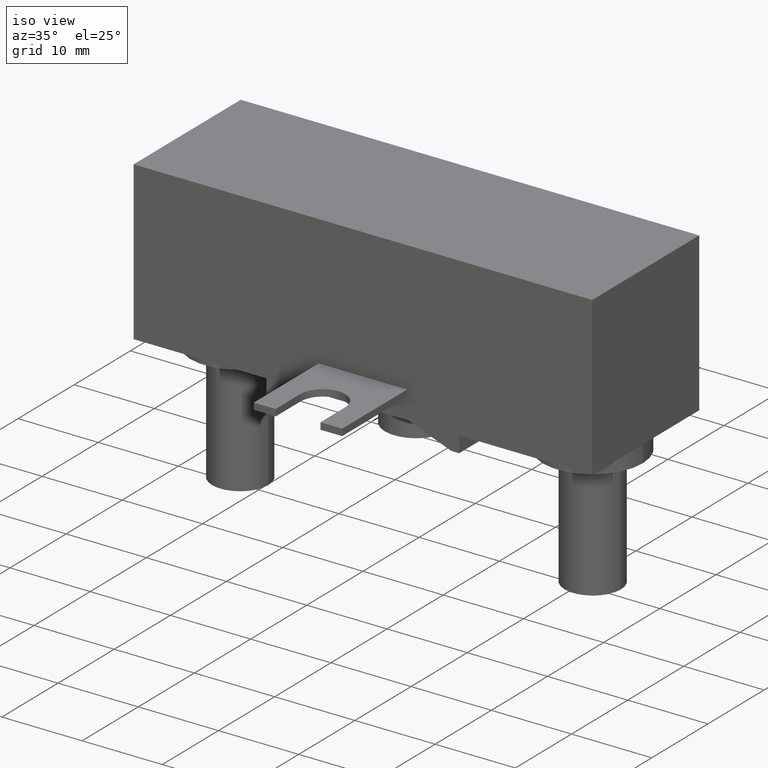
[diagram: clean part render]
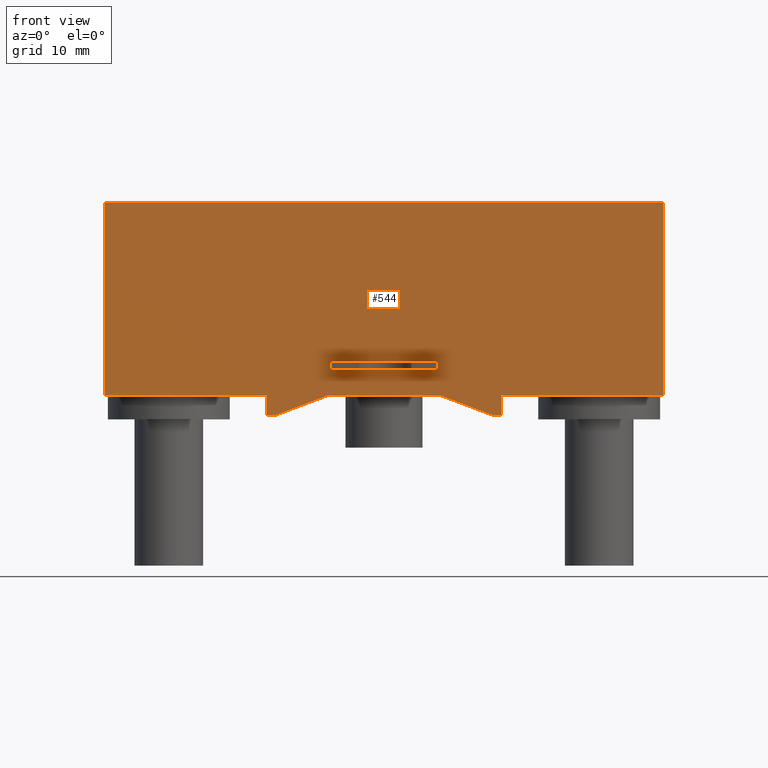
[diagram: tour spotlight — one face highlighted and labeled with its STEP entity id]
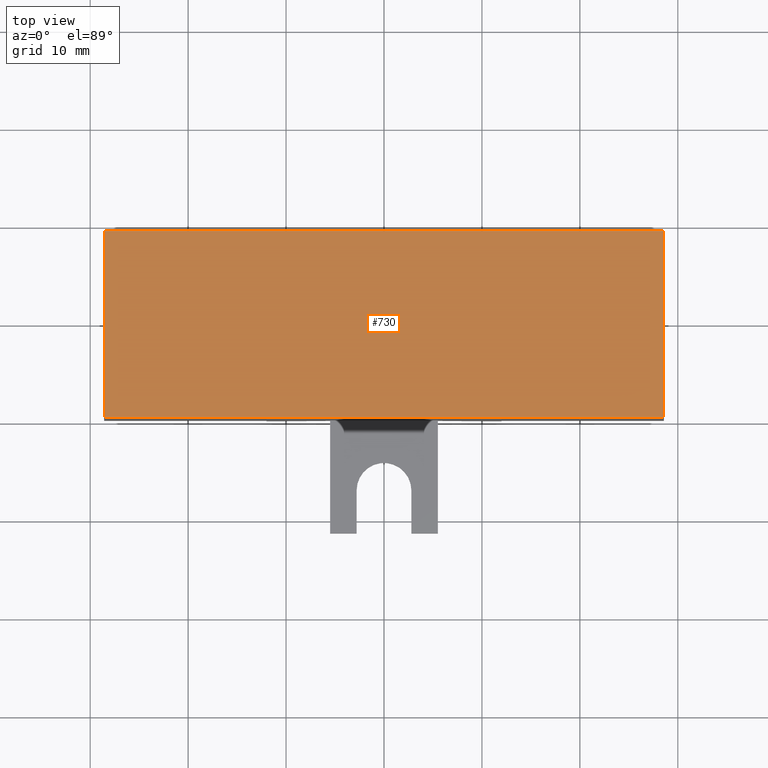
[diagram: tour spotlight — one face highlighted and labeled with its STEP entity id]
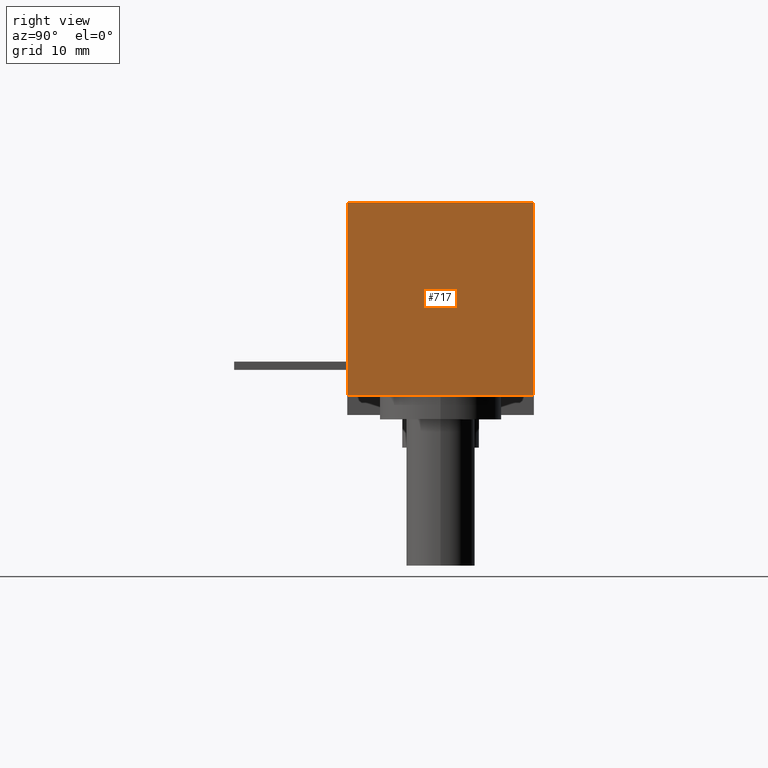
[diagram: tour spotlight — one face highlighted and labeled with its STEP entity id]
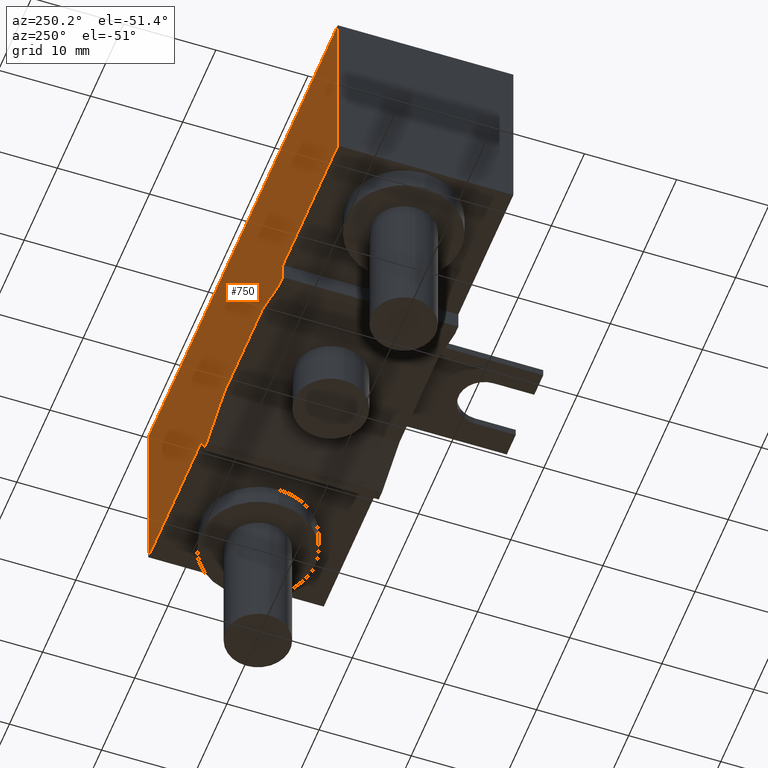
[diagram: tour spotlight — one face highlighted and labeled with its STEP entity id]
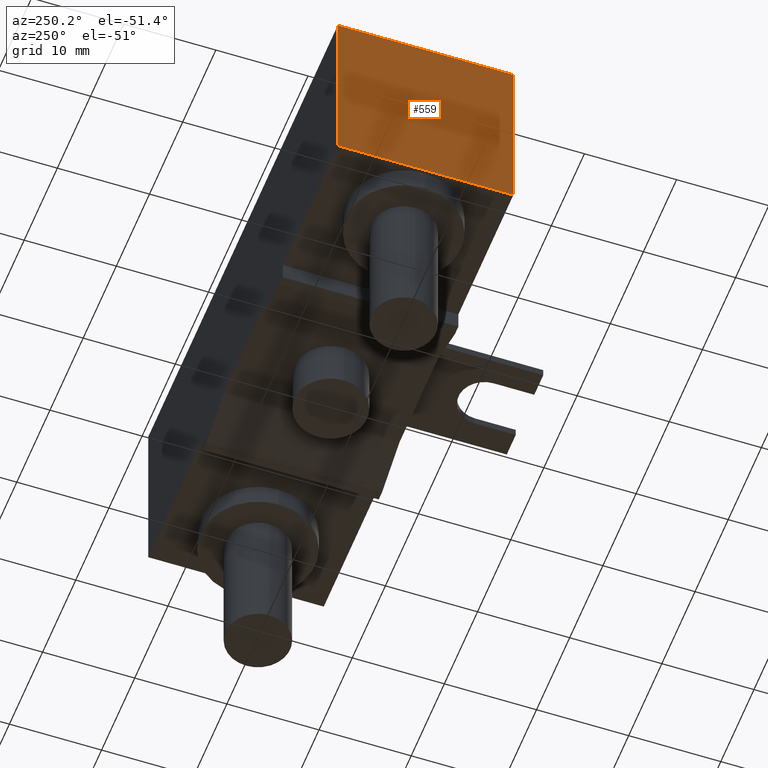
[diagram: tour spotlight — one face highlighted and labeled with its STEP entity id]
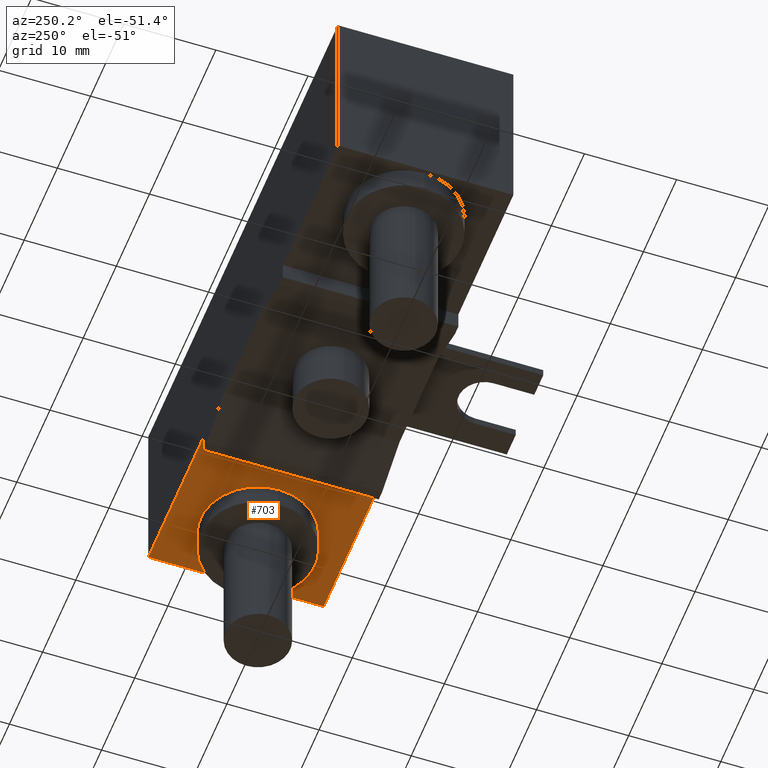
[diagram: tour spotlight — one face highlighted and labeled with its STEP entity id]
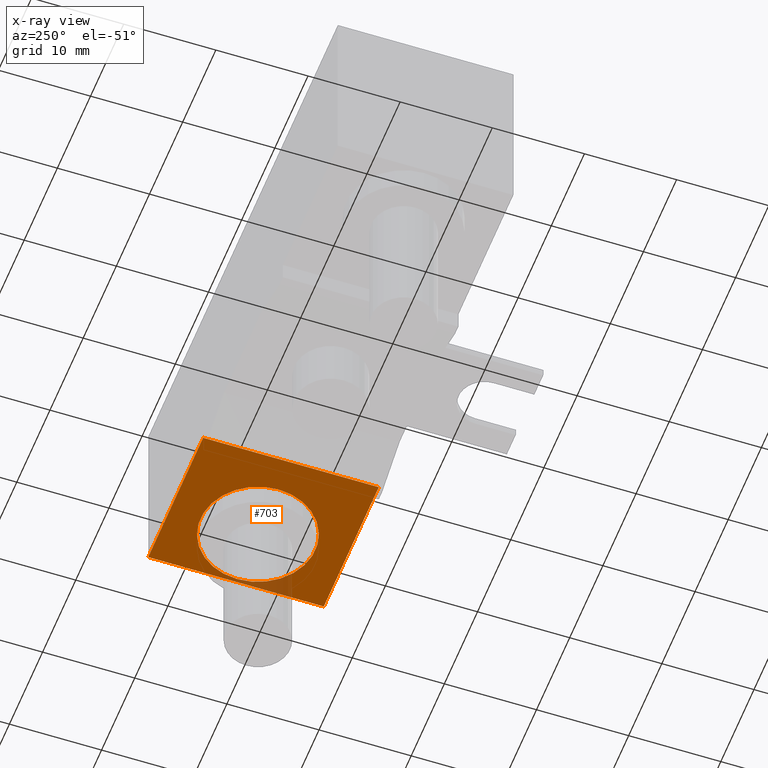
[diagram: x-ray of the same camera — body ghosted, this tour face saturated]
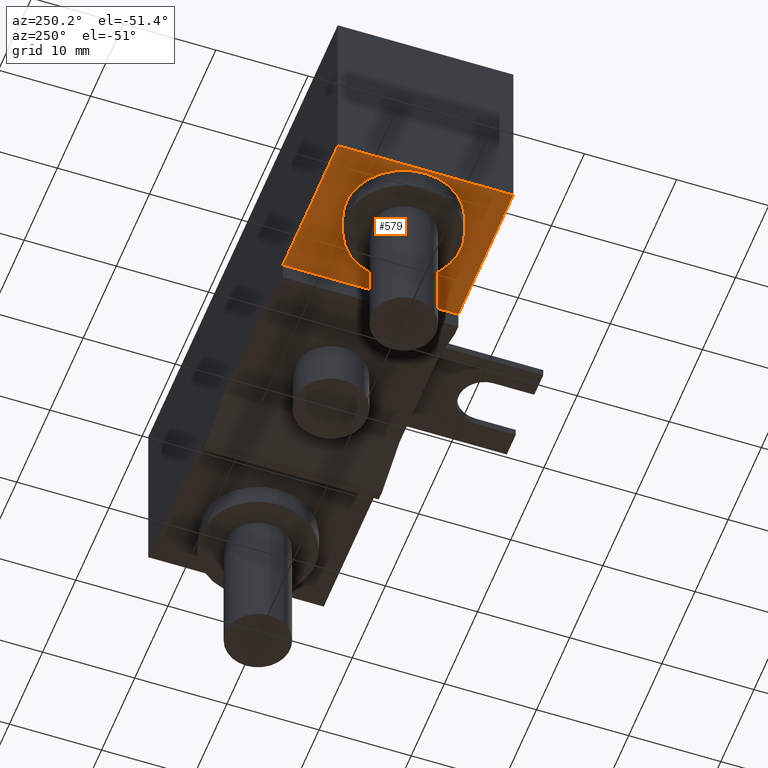
[diagram: tour spotlight — one face highlighted and labeled with its STEP entity id]
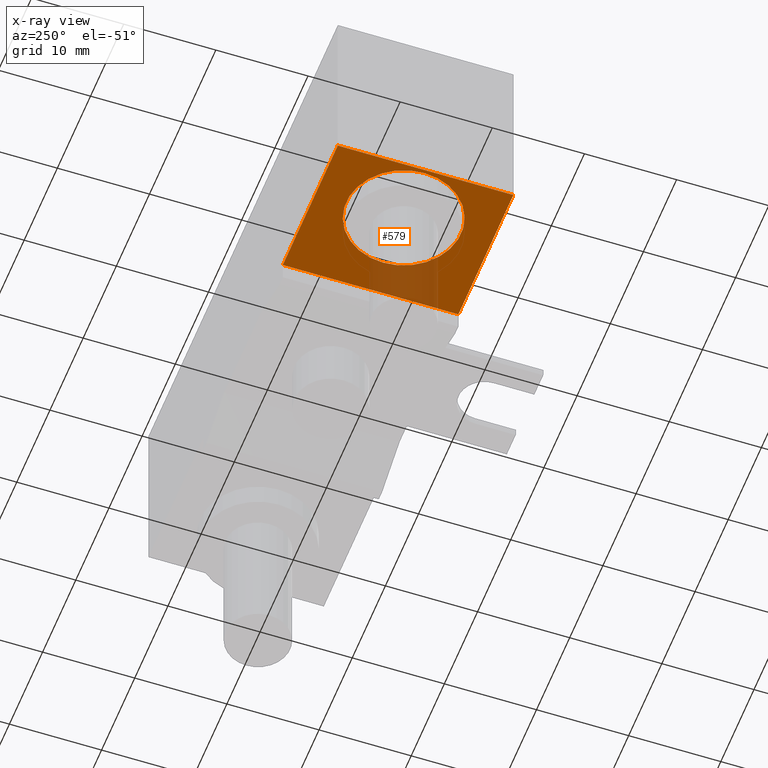
[diagram: x-ray of the same camera — body ghosted, this tour face saturated]
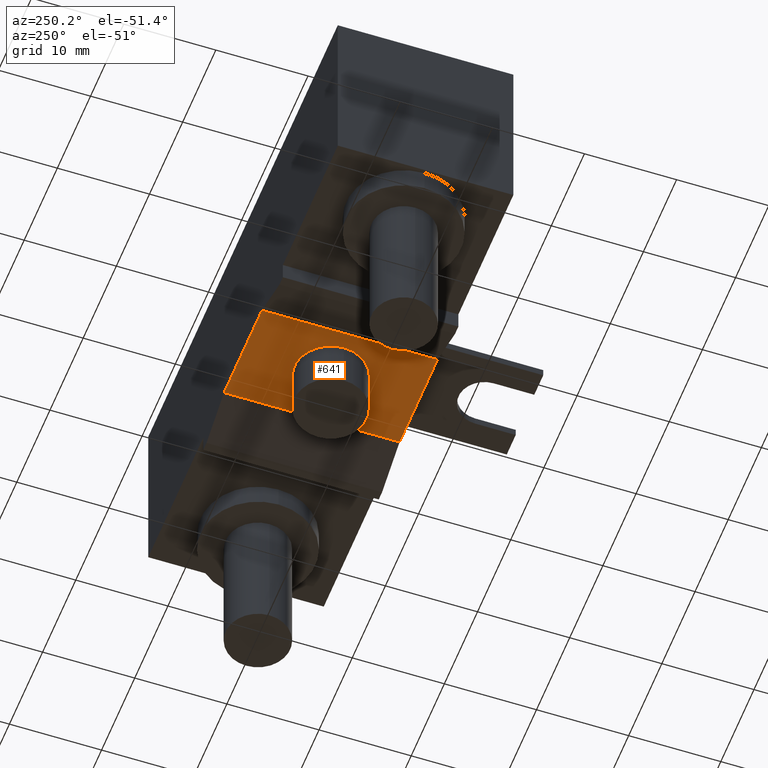
[diagram: tour spotlight — one face highlighted and labeled with its STEP entity id]
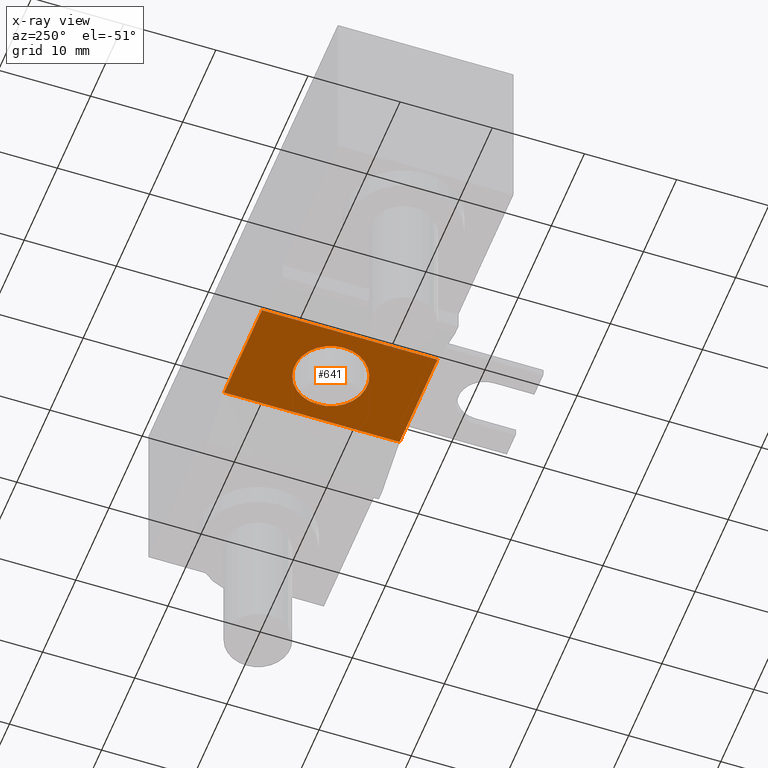
[diagram: x-ray of the same camera — body ghosted, this tour face saturated]
A machine part: a face-by-face anatomy tour. The part has 38 B-rep faces; the first image is the clean iso view, then the 8 largest visible faces are spotlighted one at a time (largest first), each with its STEP entity span.

Face 1 — front view, entity #544. In plain terms, the highlighted planar face has unit normal (0, 1, 0).
Definition (entity closure, byte-faithful):
#1=DIRECTION('',(0.E0,0.E0,1.E0));
#2=VECTOR('',#1,1.97E1);
#3=CARTESIAN_POINT('',(-2.8575E1,0.E0,-9.85E0));
#4=LINE('',#3,#2);
#5=DIRECTION('',(1.E0,0.E0,0.E0));
#6=VECTOR('',#5,5.715E1);
#7=CARTESIAN_POINT('',(-2.8575E1,0.E0,9.85E0));
#8=LINE('',#7,#6);
#9=DIRECTION('',(0.E0,0.E0,-1.E0));
#10=VECTOR('',#9,1.97E1);
#11=CARTESIAN_POINT('',(2.8575E1,0.E0,9.85E0));
#12=LINE('',#11,#10);
#13=DIRECTION('',(-1.E0,0.E0,0.E0));
#14=VECTOR('',#13,1.6575E1);
#15=CARTESIAN_POINT('',(2.8575E1,0.E0,-9.85E0));
#16=LINE('',#15,#14);
#17=DIRECTION('',(0.E0,0.E0,-1.E0));
#18=VECTOR('',#17,2.E0);
#19=CARTESIAN_POINT('',(1.2E1,0.E0,-9.85E0));
#20=LINE('',#19,#18);
#21=DIRECTION('',(-1.E0,0.E0,0.E0));
#22=VECTOR('',#21,1.E0);
#23=CARTESIAN_POINT('',(1.2E1,0.E0,-1.185E1));
#24=LINE('',#23,#22);
#25=DIRECTION('',(-9.352704256096E-1,0.E0,3.539339358977E-1));
#26=VECTOR('',#25,5.650772071142E0);
#27=CARTESIAN_POINT('',(1.1E1,0.E0,-1.185E1));
#28=LINE('',#27,#26);
#29=DIRECTION('',(-1.E0,0.E0,0.E0));
#30=VECTOR('',#29,1.143E1);
#31=CARTESIAN_POINT('',(5.715E0,0.E0,-9.85E0));
#32=LINE('',#31,#30);
#33=DIRECTION('',(-9.352704256096E-1,0.E0,-3.539339358977E-1));
#34=VECTOR('',#33,5.650772071142E0);
#35=CARTESIAN_POINT('',(-5.715E0,0.E0,-9.85E0));
#36=LINE('',#35,#34);
#37=DIRECTION('',(-1.E0,0.E0,0.E0));
#38=VECTOR('',#37,1.E0);
#39=CARTESIAN_POINT('',(-1.1E1,0.E0,-1.185E1));
#40=LINE('',#39,#38);
#41=DIRECTION('',(0.E0,0.E0,1.E0));
#42=VECTOR('',#41,2.E0);
#43=CARTESIAN_POINT('',(-1.2E1,0.E0,-1.185E1));
#44=LINE('',#43,#42);
#45=DIRECTION('',(-1.E0,0.E0,0.E0));
#46=VECTOR('',#45,1.6575E1);
#47=CARTESIAN_POINT('',(-1.2E1,0.E0,-9.85E0));
#48=LINE('',#47,#46);
#49=DIRECTION('',(1.E0,0.E0,0.E0));
#50=VECTOR('',#49,1.1E1);
#51=CARTESIAN_POINT('',(-5.5E0,0.E0,-6.41E0));
#52=LINE('',#51,#50);
#53=DIRECTION('',(0.E0,0.E0,-1.E0));
#54=VECTOR('',#53,8.4E-1);
#55=CARTESIAN_POINT('',(-5.5E0,0.E0,-6.41E0));
#56=LINE('',#55,#54);
#57=DIRECTION('',(1.E0,0.E0,0.E0));
#58=VECTOR('',#57,1.1E1);
#59=CARTESIAN_POINT('',(-5.5E0,0.E0,-7.25E0));
#60=LINE('',#59,#58);
#61=DIRECTION('',(0.E0,0.E0,-1.E0));
#62=VECTOR('',#61,8.4E-1);
#63=CARTESIAN_POINT('',(5.5E0,0.E0,-6.41E0));
#64=LINE('',#63,#62);
#383=CARTESIAN_POINT('',(-2.8575E1,0.E0,-9.85E0));
#384=CARTESIAN_POINT('',(-2.8575E1,0.E0,9.85E0));
#385=VERTEX_POINT('',#383);
#386=VERTEX_POINT('',#384);
#387=CARTESIAN_POINT('',(2.8575E1,0.E0,9.85E0));
#388=VERTEX_POINT('',#387);
#389=CARTESIAN_POINT('',(2.8575E1,0.E0,-9.85E0));
#390=VERTEX_POINT('',#389);
#391=CARTESIAN_POINT('',(-1.2E1,0.E0,-9.85E0));
#392=VERTEX_POINT('',#391);
#403=CARTESIAN_POINT('',(1.2E1,0.E0,-9.85E0));
#404=VERTEX_POINT('',#403);
#405=CARTESIAN_POINT('',(1.2E1,0.E0,-1.185E1));
#406=VERTEX_POINT('',#405);
#407=CARTESIAN_POINT('',(1.1E1,0.E0,-1.185E1));
#408=VERTEX_POINT('',#407);
#409=CARTESIAN_POINT('',(5.715E0,0.E0,-9.85E0));
#410=VERTEX_POINT('',#409);
#411=CARTESIAN_POINT('',(-5.715E0,0.E0,-9.85E0));
#412=VERTEX_POINT('',#411);
#413=CARTESIAN_POINT('',(-1.1E1,0.E0,-1.185E1));
#414=VERTEX_POINT('',#413);
#415=CARTESIAN_POINT('',(-1.2E1,0.E0,-1.185E1));
#416=VERTEX_POINT('',#415);
#471=CARTESIAN_POINT('',(-5.5E0,0.E0,-6.41E0));
#472=CARTESIAN_POINT('',(5.5E0,0.E0,-6.41E0));
#473=VERTEX_POINT('',#471);
#474=VERTEX_POINT('',#472);
#475=CARTESIAN_POINT('',(-5.5E0,0.E0,-7.25E0));
#476=CARTESIAN_POINT('',(5.5E0,0.E0,-7.25E0));
#477=VERTEX_POINT('',#475);
#478=VERTEX_POINT('',#476);
#503=CARTESIAN_POINT('',(0.E0,0.E0,0.E0));
#504=DIRECTION('',(0.E0,1.E0,0.E0));
#505=DIRECTION('',(1.E0,0.E0,0.E0));
#506=AXIS2_PLACEMENT_3D('',#503,#504,#505);
#507=PLANE('',#506);
#509=ORIENTED_EDGE('',*,*,#508,.T.);
#511=ORIENTED_EDGE('',*,*,#510,.T.);
#513=ORIENTED_EDGE('',*,*,#512,.T.);
#515=ORIENTED_EDGE('',*,*,#514,.T.);
#517=ORIENTED_EDGE('',*,*,#516,.T.);
#519=ORIENTED_EDGE('',*,*,#518,.T.);
#521=ORIENTED_EDGE('',*,*,#520,.T.);
#523=ORIENTED_EDGE('',*,*,#522,.T.);
#525=ORIENTED_EDGE('',*,*,#524,.T.);
#527=ORIENTED_EDGE('',*,*,#526,.T.);
#529=ORIENTED_EDGE('',*,*,#528,.T.);
#531=ORIENTED_EDGE('',*,*,#530,.T.);
#532=EDGE_LOOP('',(#509,#511,#513,#515,#517,#519,#521,#523,#525,#527,#529,
#531));
#533=FACE_OUTER_BOUND('',#532,.F.);
#535=ORIENTED_EDGE('',*,*,#534,.F.);
#537=ORIENTED_EDGE('',*,*,#536,.T.);
#539=ORIENTED_EDGE('',*,*,#538,.T.);
#541=ORIENTED_EDGE('',*,*,#540,.F.);
#542=EDGE_LOOP('',(#535,#537,#539,#541));
#543=FACE_BOUND('',#542,.F.);
#508=EDGE_CURVE('',#385,#386,#4,.T.);
#510=EDGE_CURVE('',#386,#388,#8,.T.);
#512=EDGE_CURVE('',#388,#390,#12,.T.);
#514=EDGE_CURVE('',#390,#404,#16,.T.);
#516=EDGE_CURVE('',#404,#406,#20,.T.);
#518=EDGE_CURVE('',#406,#408,#24,.T.);
#520=EDGE_CURVE('',#408,#410,#28,.T.);
#522=EDGE_CURVE('',#410,#412,#32,.T.);
#524=EDGE_CURVE('',#412,#414,#36,.T.);
#526=EDGE_CURVE('',#414,#416,#40,.T.);
#528=EDGE_CURVE('',#416,#392,#44,.T.);
#530=EDGE_CURVE('',#392,#385,#48,.T.);
#534=EDGE_CURVE('',#473,#474,#52,.T.);
#536=EDGE_CURVE('',#473,#477,#56,.T.);
#538=EDGE_CURVE('',#477,#478,#60,.T.);
#540=EDGE_CURVE('',#474,#478,#64,.T.);
#544=ADVANCED_FACE('',(#533,#543),#507,.F.);

Face 2 — top view, entity #730. In plain terms, the highlighted planar face has unit normal (0, 0, 1).
Definition (entity closure, byte-faithful):
#5=DIRECTION('',(1.E0,0.E0,0.E0));
#6=VECTOR('',#5,5.715E1);
#7=CARTESIAN_POINT('',(-2.8575E1,0.E0,9.85E0));
#8=LINE('',#7,#6);
#135=DIRECTION('',(0.E0,1.E0,0.E0));
#136=VECTOR('',#135,1.905E1);
#137=CARTESIAN_POINT('',(2.8575E1,0.E0,9.85E0));
#138=LINE('',#137,#136);
#139=DIRECTION('',(0.E0,1.E0,0.E0));
#140=VECTOR('',#139,1.905E1);
#141=CARTESIAN_POINT('',(-2.8575E1,0.E0,9.85E0));
#142=LINE('',#141,#140);
#187=DIRECTION('',(1.E0,0.E0,0.E0));
#188=VECTOR('',#187,5.715E1);
#189=CARTESIAN_POINT('',(-2.8575E1,1.905E1,9.85E0));
#190=LINE('',#189,#188);
#384=CARTESIAN_POINT('',(-2.8575E1,0.E0,9.85E0));
#386=VERTEX_POINT('',#384);
#387=CARTESIAN_POINT('',(2.8575E1,0.E0,9.85E0));
#388=VERTEX_POINT('',#387);
#394=CARTESIAN_POINT('',(-2.8575E1,1.905E1,9.85E0));
#396=VERTEX_POINT('',#394);
#397=CARTESIAN_POINT('',(2.8575E1,1.905E1,9.85E0));
#398=VERTEX_POINT('',#397);
#718=CARTESIAN_POINT('',(-2.8575E1,0.E0,9.85E0));
#719=DIRECTION('',(0.E0,0.E0,1.E0));
#720=DIRECTION('',(1.E0,0.E0,0.E0));
#721=AXIS2_PLACEMENT_3D('',#718,#719,#720);
#722=PLANE('',#721);
#723=ORIENTED_EDGE('',*,*,#510,.F.);
#724=ORIENTED_EDGE('',*,*,#555,.T.);
#726=ORIENTED_EDGE('',*,*,#725,.T.);
#727=ORIENTED_EDGE('',*,*,#710,.F.);
#728=EDGE_LOOP('',(#723,#724,#726,#727));
#729=FACE_OUTER_BOUND('',#728,.F.);
#510=EDGE_CURVE('',#386,#388,#8,.T.);
#555=EDGE_CURVE('',#386,#396,#142,.T.);
#710=EDGE_CURVE('',#388,#398,#138,.T.);
#725=EDGE_CURVE('',#396,#398,#190,.T.);
#730=ADVANCED_FACE('',(#729),#722,.T.);

Face 3 — right view, entity #717. In plain terms, the highlighted planar face has unit normal (1, 0, 0).
Definition (entity closure, byte-faithful):
#9=DIRECTION('',(0.E0,0.E0,-1.E0));
#10=VECTOR('',#9,1.97E1);
#11=CARTESIAN_POINT('',(2.8575E1,0.E0,9.85E0));
#12=LINE('',#11,#10);
#121=DIRECTION('',(0.E0,1.E0,0.E0));
#122=VECTOR('',#121,1.905E1);
#123=CARTESIAN_POINT('',(2.8575E1,0.E0,-9.85E0));
#124=LINE('',#123,#122);
#135=DIRECTION('',(0.E0,1.E0,0.E0));
#136=VECTOR('',#135,1.905E1);
#137=CARTESIAN_POINT('',(2.8575E1,0.E0,9.85E0));
#138=LINE('',#137,#136);
#183=DIRECTION('',(0.E0,0.E0,-1.E0));
#184=VECTOR('',#183,1.97E1);
#185=CARTESIAN_POINT('',(2.8575E1,1.905E1,9.85E0));
#186=LINE('',#185,#184);
#387=CARTESIAN_POINT('',(2.8575E1,0.E0,9.85E0));
#388=VERTEX_POINT('',#387);
#389=CARTESIAN_POINT('',(2.8575E1,0.E0,-9.85E0));
#390=VERTEX_POINT('',#389);
#397=CARTESIAN_POINT('',(2.8575E1,1.905E1,9.85E0));
#398=VERTEX_POINT('',#397);
#399=CARTESIAN_POINT('',(2.8575E1,1.905E1,-9.85E0));
#400=VERTEX_POINT('',#399);
#704=CARTESIAN_POINT('',(2.8575E1,0.E0,9.85E0));
#705=DIRECTION('',(1.E0,0.E0,0.E0));
#706=DIRECTION('',(0.E0,0.E0,-1.E0));
#707=AXIS2_PLACEMENT_3D('',#704,#705,#706);
#708=PLANE('',#707);
#709=ORIENTED_EDGE('',*,*,#512,.F.);
#711=ORIENTED_EDGE('',*,*,#710,.T.);
#713=ORIENTED_EDGE('',*,*,#712,.T.);
#714=ORIENTED_EDGE('',*,*,#690,.F.);
#715=EDGE_LOOP('',(#709,#711,#713,#714));
#716=FACE_OUTER_BOUND('',#715,.F.);
#512=EDGE_CURVE('',#388,#390,#12,.T.);
#690=EDGE_CURVE('',#390,#400,#124,.T.);
#710=EDGE_CURVE('',#388,#398,#138,.T.);
#712=EDGE_CURVE('',#398,#400,#186,.T.);
#717=ADVANCED_FACE('',(#716),#708,.T.);

Face 4 — auxiliary view, entity #750. In plain terms, the highlighted planar face has unit normal (0, 1, 0).
Definition (entity closure, byte-faithful):
#143=DIRECTION('',(0.E0,0.E0,1.E0));
#144=VECTOR('',#143,1.97E1);
#145=CARTESIAN_POINT('',(-2.8575E1,1.905E1,-9.85E0));
#146=LINE('',#145,#144);
#147=DIRECTION('',(-1.E0,0.E0,0.E0));
#148=VECTOR('',#147,1.6575E1);
#149=CARTESIAN_POINT('',(-1.2E1,1.905E1,-9.85E0));
#150=LINE('',#149,#148);
#151=DIRECTION('',(0.E0,0.E0,1.E0));
#152=VECTOR('',#151,2.E0);
#153=CARTESIAN_POINT('',(-1.2E1,1.905E1,-1.185E1));
#154=LINE('',#153,#152);
#155=DIRECTION('',(-1.E0,0.E0,0.E0));
#156=VECTOR('',#155,1.E0);
#157=CARTESIAN_POINT('',(-1.1E1,1.905E1,-1.185E1));
#158=LINE('',#157,#156);
#159=DIRECTION('',(-9.352704256096E-1,0.E0,-3.539339358977E-1));
#160=VECTOR('',#159,5.650772071142E0);
#161=CARTESIAN_POINT('',(-5.715E0,1.905E1,-9.85E0));
#162=LINE('',#161,#160);
#163=DIRECTION('',(-1.E0,0.E0,0.E0));
#164=VECTOR('',#163,1.143E1);
#165=CARTESIAN_POINT('',(5.715E0,1.905E1,-9.85E0));
#166=LINE('',#165,#164);
#167=DIRECTION('',(-9.352704256096E-1,0.E0,3.539339358977E-1));
#168=VECTOR('',#167,5.650772071142E0);
#169=CARTESIAN_POINT('',(1.1E1,1.905E1,-1.185E1));
#170=LINE('',#169,#168);
#171=DIRECTION('',(-1.E0,0.E0,0.E0));
#172=VECTOR('',#171,1.E0);
#173=CARTESIAN_POINT('',(1.2E1,1.905E1,-1.185E1));
#174=LINE('',#173,#172);
#175=DIRECTION('',(0.E0,0.E0,-1.E0));
#176=VECTOR('',#175,2.E0);
#177=CARTESIAN_POINT('',(1.2E1,1.905E1,-9.85E0));
#178=LINE('',#177,#176);
#179=DIRECTION('',(-1.E0,0.E0,0.E0));
#180=VECTOR('',#179,1.6575E1);
#181=CARTESIAN_POINT('',(2.8575E1,1.905E1,-9.85E0));
#182=LINE('',#181,#180);
#183=DIRECTION('',(0.E0,0.E0,-1.E0));
#184=VECTOR('',#183,1.97E1);
#185=CARTESIAN_POINT('',(2.8575E1,1.905E1,9.85E0));
#186=LINE('',#185,#184);
#187=DIRECTION('',(1.E0,0.E0,0.E0));
#188=VECTOR('',#187,5.715E1);
#189=CARTESIAN_POINT('',(-2.8575E1,1.905E1,9.85E0));
#190=LINE('',#189,#188);
#393=CARTESIAN_POINT('',(-2.8575E1,1.905E1,-9.85E0));
#394=CARTESIAN_POINT('',(-2.8575E1,1.905E1,9.85E0));
#395=VERTEX_POINT('',#393);
#396=VERTEX_POINT('',#394);
#397=CARTESIAN_POINT('',(2.8575E1,1.905E1,9.85E0));
#398=VERTEX_POINT('',#397);
#399=CARTESIAN_POINT('',(2.8575E1,1.905E1,-9.85E0));
#400=VERTEX_POINT('',#399);
#401=CARTESIAN_POINT('',(-1.2E1,1.905E1,-9.85E0));
#402=VERTEX_POINT('',#401);
#417=CARTESIAN_POINT('',(1.2E1,1.905E1,-9.85E0));
#418=VERTEX_POINT('',#417);
#419=CARTESIAN_POINT('',(1.2E1,1.905E1,-1.185E1));
#420=VERTEX_POINT('',#419);
#421=CARTESIAN_POINT('',(1.1E1,1.905E1,-1.185E1));
#422=VERTEX_POINT('',#421);
#423=CARTESIAN_POINT('',(5.715E0,1.905E1,-9.85E0));
#424=VERTEX_POINT('',#423);
#425=CARTESIAN_POINT('',(-5.715E0,1.905E1,-9.85E0));
#426=VERTEX_POINT('',#425);
#427=CARTESIAN_POINT('',(-1.1E1,1.905E1,-1.185E1));
#428=VERTEX_POINT('',#427);
#429=CARTESIAN_POINT('',(-1.2E1,1.905E1,-1.185E1));
#430=VERTEX_POINT('',#429);
#731=CARTESIAN_POINT('',(0.E0,1.905E1,0.E0));
#732=DIRECTION('',(0.E0,1.E0,0.E0));
#733=DIRECTION('',(1.E0,0.E0,0.E0));
#734=AXIS2_PLACEMENT_3D('',#731,#732,#733);
#735=PLANE('',#734);
#736=ORIENTED_EDGE('',*,*,#553,.F.);
#737=ORIENTED_EDGE('',*,*,#568,.F.);
#738=ORIENTED_EDGE('',*,*,#588,.F.);
#739=ORIENTED_EDGE('',*,*,#602,.F.);
#740=ORIENTED_EDGE('',*,*,#616,.F.);
#741=ORIENTED_EDGE('',*,*,#630,.F.);
#742=ORIENTED_EDGE('',*,*,#650,.F.);
#743=ORIENTED_EDGE('',*,*,#664,.F.);
#744=ORIENTED_EDGE('',*,*,#678,.F.);
#745=ORIENTED_EDGE('',*,*,#692,.F.);
#746=ORIENTED_EDGE('',*,*,#712,.F.);
#747=ORIENTED_EDGE('',*,*,#725,.F.);
#748=EDGE_LOOP('',(#736,#737,#738,#739,#740,#741,#742,#743,#744,#745,#746,
#747));
#749=FACE_OUTER_BOUND('',#748,.F.);
#553=EDGE_CURVE('',#395,#396,#146,.T.);
#568=EDGE_CURVE('',#402,#395,#150,.T.);
#588=EDGE_CURVE('',#430,#402,#154,.T.);
#602=EDGE_CURVE('',#428,#430,#158,.T.);
#616=EDGE_CURVE('',#426,#428,#162,.T.);
#630=EDGE_CURVE('',#424,#426,#166,.T.);
#650=EDGE_CURVE('',#422,#424,#170,.T.);
#664=EDGE_CURVE('',#420,#422,#174,.T.);
#678=EDGE_CURVE('',#418,#420,#178,.T.);
#692=EDGE_CURVE('',#400,#418,#182,.T.);
#712=EDGE_CURVE('',#398,#400,#186,.T.);
#725=EDGE_CURVE('',#396,#398,#190,.T.);
#750=ADVANCED_FACE('',(#749),#735,.T.);

Face 5 — auxiliary view, entity #559. In plain terms, the highlighted planar face has unit normal (-1, 0, 0).
Definition (entity closure, byte-faithful):
#1=DIRECTION('',(0.E0,0.E0,1.E0));
#2=VECTOR('',#1,1.97E1);
#3=CARTESIAN_POINT('',(-2.8575E1,0.E0,-9.85E0));
#4=LINE('',#3,#2);
#65=DIRECTION('',(0.E0,1.E0,0.E0));
#66=VECTOR('',#65,1.905E1);
#67=CARTESIAN_POINT('',(-2.8575E1,0.E0,-9.85E0));
#68=LINE('',#67,#66);
#139=DIRECTION('',(0.E0,1.E0,0.E0));
#140=VECTOR('',#139,1.905E1);
#141=CARTESIAN_POINT('',(-2.8575E1,0.E0,9.85E0));
#142=LINE('',#141,#140);
#143=DIRECTION('',(0.E0,0.E0,1.E0));
#144=VECTOR('',#143,1.97E1);
#145=CARTESIAN_POINT('',(-2.8575E1,1.905E1,-9.85E0));
#146=LINE('',#145,#144);
#383=CARTESIAN_POINT('',(-2.8575E1,0.E0,-9.85E0));
#384=CARTESIAN_POINT('',(-2.8575E1,0.E0,9.85E0));
#385=VERTEX_POINT('',#383);
#386=VERTEX_POINT('',#384);
#393=CARTESIAN_POINT('',(-2.8575E1,1.905E1,-9.85E0));
#394=CARTESIAN_POINT('',(-2.8575E1,1.905E1,9.85E0));
#395=VERTEX_POINT('',#393);
#396=VERTEX_POINT('',#394);
#545=CARTESIAN_POINT('',(-2.8575E1,0.E0,-9.85E0));
#546=DIRECTION('',(-1.E0,0.E0,0.E0));
#547=DIRECTION('',(0.E0,0.E0,1.E0));
#548=AXIS2_PLACEMENT_3D('',#545,#546,#547);
#549=PLANE('',#548);
#550=ORIENTED_EDGE('',*,*,#508,.F.);
#552=ORIENTED_EDGE('',*,*,#551,.T.);
#554=ORIENTED_EDGE('',*,*,#553,.T.);
#556=ORIENTED_EDGE('',*,*,#555,.F.);
#557=EDGE_LOOP('',(#550,#552,#554,#556));
#558=FACE_OUTER_BOUND('',#557,.F.);
#508=EDGE_CURVE('',#385,#386,#4,.T.);
#551=EDGE_CURVE('',#385,#395,#68,.T.);
#553=EDGE_CURVE('',#395,#396,#146,.T.);
#555=EDGE_CURVE('',#386,#396,#142,.T.);
#559=ADVANCED_FACE('',(#558),#549,.T.);

Face 6 — auxiliary view, entity #703. An x-ray twin of the same camera follows (body ghosted, this face saturated) — the face is partly hidden behind the body. In plain terms, the highlighted planar face has unit normal (0, 0, -1).
Definition (entity closure, byte-faithful):
#13=DIRECTION('',(-1.E0,0.E0,0.E0));
#14=VECTOR('',#13,1.6575E1);
#15=CARTESIAN_POINT('',(2.8575E1,0.E0,-9.85E0));
#16=LINE('',#15,#14);
#117=DIRECTION('',(0.E0,1.E0,0.E0));
#118=VECTOR('',#117,1.905E1);
#119=CARTESIAN_POINT('',(1.2E1,0.E0,-9.85E0));
#120=LINE('',#119,#118);
#121=DIRECTION('',(0.E0,1.E0,0.E0));
#122=VECTOR('',#121,1.905E1);
#123=CARTESIAN_POINT('',(2.8575E1,0.E0,-9.85E0));
#124=LINE('',#123,#122);
#125=CARTESIAN_POINT('',(2.197E1,9.525E0,-9.85E0));
#126=DIRECTION('',(0.E0,0.E0,-1.E0));
#127=DIRECTION('',(1.E0,0.E0,0.E0));
#128=AXIS2_PLACEMENT_3D('',#125,#126,#127);
#130=CARTESIAN_POINT('',(2.197E1,9.525E0,-9.85E0));
#131=DIRECTION('',(0.E0,0.E0,-1.E0));
#132=DIRECTION('',(-1.E0,0.E0,0.E0));
#133=AXIS2_PLACEMENT_3D('',#130,#131,#132);
#179=DIRECTION('',(-1.E0,0.E0,0.E0));
#180=VECTOR('',#179,1.6575E1);
#181=CARTESIAN_POINT('',(2.8575E1,1.905E1,-9.85E0));
#182=LINE('',#181,#180);
#389=CARTESIAN_POINT('',(2.8575E1,0.E0,-9.85E0));
#390=VERTEX_POINT('',#389);
#399=CARTESIAN_POINT('',(2.8575E1,1.905E1,-9.85E0));
#400=VERTEX_POINT('',#399);
#403=CARTESIAN_POINT('',(1.2E1,0.E0,-9.85E0));
#404=VERTEX_POINT('',#403);
#417=CARTESIAN_POINT('',(1.2E1,1.905E1,-9.85E0));
#418=VERTEX_POINT('',#417);
#443=CARTESIAN_POINT('',(2.8195E1,9.525E0,-9.85E0));
#444=CARTESIAN_POINT('',(1.5745E1,9.525E0,-9.85E0));
#445=VERTEX_POINT('',#443);
#446=VERTEX_POINT('',#444);
#684=CARTESIAN_POINT('',(2.8575E1,0.E0,-9.85E0));
#685=DIRECTION('',(0.E0,0.E0,-1.E0));
#686=DIRECTION('',(-1.E0,0.E0,0.E0));
#687=AXIS2_PLACEMENT_3D('',#684,#685,#686);
#688=PLANE('',#687);
#689=ORIENTED_EDGE('',*,*,#514,.F.);
#691=ORIENTED_EDGE('',*,*,#690,.T.);
#693=ORIENTED_EDGE('',*,*,#692,.T.);
#694=ORIENTED_EDGE('',*,*,#676,.F.);
#695=EDGE_LOOP('',(#689,#691,#693,#694));
#696=FACE_OUTER_BOUND('',#695,.F.);
#698=ORIENTED_EDGE('',*,*,#697,.T.);
#700=ORIENTED_EDGE('',*,*,#699,.T.);
#701=EDGE_LOOP('',(#698,#700));
#702=FACE_BOUND('',#701,.F.);
#129=CIRCLE('',#128,6.225E0);
#134=CIRCLE('',#133,6.225E0);
#514=EDGE_CURVE('',#390,#404,#16,.T.);
#676=EDGE_CURVE('',#404,#418,#120,.T.);
#690=EDGE_CURVE('',#390,#400,#124,.T.);
#692=EDGE_CURVE('',#400,#418,#182,.T.);
#697=EDGE_CURVE('',#445,#446,#129,.T.);
#699=EDGE_CURVE('',#446,#445,#134,.T.);
#703=ADVANCED_FACE('',(#696,#702),#688,.T.);

Face 7 — auxiliary view, entity #579. An x-ray twin of the same camera follows (body ghosted, this face saturated) — the face is partly hidden behind the body. In plain terms, the highlighted planar face has unit normal (0, 0, -1).
Definition (entity closure, byte-faithful):
#45=DIRECTION('',(-1.E0,0.E0,0.E0));
#46=VECTOR('',#45,1.6575E1);
#47=CARTESIAN_POINT('',(-1.2E1,0.E0,-9.85E0));
#48=LINE('',#47,#46);
#65=DIRECTION('',(0.E0,1.E0,0.E0));
#66=VECTOR('',#65,1.905E1);
#67=CARTESIAN_POINT('',(-2.8575E1,0.E0,-9.85E0));
#68=LINE('',#67,#66);
#69=DIRECTION('',(0.E0,1.E0,0.E0));
#70=VECTOR('',#69,1.905E1);
#71=CARTESIAN_POINT('',(-1.2E1,0.E0,-9.85E0));
#72=LINE('',#71,#70);
#73=CARTESIAN_POINT('',(-2.197E1,9.525E0,-9.85E0));
#74=DIRECTION('',(0.E0,0.E0,-1.E0));
#75=DIRECTION('',(1.E0,0.E0,0.E0));
#76=AXIS2_PLACEMENT_3D('',#73,#74,#75);
#78=CARTESIAN_POINT('',(-2.197E1,9.525E0,-9.85E0));
#79=DIRECTION('',(0.E0,0.E0,-1.E0));
#80=DIRECTION('',(-1.E0,0.E0,0.E0));
#81=AXIS2_PLACEMENT_3D('',#78,#79,#80);
#147=DIRECTION('',(-1.E0,0.E0,0.E0));
#148=VECTOR('',#147,1.6575E1);
#149=CARTESIAN_POINT('',(-1.2E1,1.905E1,-9.85E0));
#150=LINE('',#149,#148);
#383=CARTESIAN_POINT('',(-2.8575E1,0.E0,-9.85E0));
#385=VERTEX_POINT('',#383);
#391=CARTESIAN_POINT('',(-1.2E1,0.E0,-9.85E0));
#392=VERTEX_POINT('',#391);
#393=CARTESIAN_POINT('',(-2.8575E1,1.905E1,-9.85E0));
#395=VERTEX_POINT('',#393);
#401=CARTESIAN_POINT('',(-1.2E1,1.905E1,-9.85E0));
#402=VERTEX_POINT('',#401);
#439=CARTESIAN_POINT('',(-1.5745E1,9.525E0,-9.85E0));
#440=CARTESIAN_POINT('',(-2.8195E1,9.525E0,-9.85E0));
#441=VERTEX_POINT('',#439);
#442=VERTEX_POINT('',#440);
#560=CARTESIAN_POINT('',(-1.2E1,0.E0,-9.85E0));
#561=DIRECTION('',(0.E0,0.E0,-1.E0));
#562=DIRECTION('',(-1.E0,0.E0,0.E0));
#563=AXIS2_PLACEMENT_3D('',#560,#561,#562);
#564=PLANE('',#563);
#565=ORIENTED_EDGE('',*,*,#530,.F.);
#567=ORIENTED_EDGE('',*,*,#566,.T.);
#569=ORIENTED_EDGE('',*,*,#568,.T.);
#570=ORIENTED_EDGE('',*,*,#551,.F.);
#571=EDGE_LOOP('',(#565,#567,#569,#570));
#572=FACE_OUTER_BOUND('',#571,.F.);
#574=ORIENTED_EDGE('',*,*,#573,.T.);
#576=ORIENTED_EDGE('',*,*,#575,.T.);
#577=EDGE_LOOP('',(#574,#576));
#578=FACE_BOUND('',#577,.F.);
#77=CIRCLE('',#76,6.225E0);
#82=CIRCLE('',#81,6.225E0);
#530=EDGE_CURVE('',#392,#385,#48,.T.);
#551=EDGE_CURVE('',#385,#395,#68,.T.);
#566=EDGE_CURVE('',#392,#402,#72,.T.);
#568=EDGE_CURVE('',#402,#395,#150,.T.);
#573=EDGE_CURVE('',#441,#442,#77,.T.);
#575=EDGE_CURVE('',#442,#441,#82,.T.);
#579=ADVANCED_FACE('',(#572,#578),#564,.T.);

Face 8 — auxiliary view, entity #641. An x-ray twin of the same camera follows (body ghosted, this face saturated) — the face is partly hidden behind the body. In plain terms, the highlighted planar face has unit normal (0, 0, -1).
Definition (entity closure, byte-faithful):
#29=DIRECTION('',(-1.E0,0.E0,0.E0));
#30=VECTOR('',#29,1.143E1);
#31=CARTESIAN_POINT('',(5.715E0,0.E0,-9.85E0));
#32=LINE('',#31,#30);
#91=DIRECTION('',(0.E0,1.E0,0.E0));
#92=VECTOR('',#91,1.905E1);
#93=CARTESIAN_POINT('',(-5.715E0,0.E0,-9.85E0));
#94=LINE('',#93,#92);
#95=DIRECTION('',(0.E0,1.E0,0.E0));
#96=VECTOR('',#95,1.905E1);
#97=CARTESIAN_POINT('',(5.715E0,0.E0,-9.85E0));
#98=LINE('',#97,#96);
#99=CARTESIAN_POINT('',(0.E0,9.525E0,-9.85E0));
#100=DIRECTION('',(0.E0,0.E0,-1.E0));
#101=DIRECTION('',(-1.E0,0.E0,0.E0));
#102=AXIS2_PLACEMENT_3D('',#99,#100,#101);
#104=CARTESIAN_POINT('',(0.E0,9.525E0,-9.85E0));
#105=DIRECTION('',(0.E0,0.E0,-1.E0));
#106=DIRECTION('',(1.E0,0.E0,0.E0));
#107=AXIS2_PLACEMENT_3D('',#104,#105,#106);
#163=DIRECTION('',(-1.E0,0.E0,0.E0));
#164=VECTOR('',#163,1.143E1);
#165=CARTESIAN_POINT('',(5.715E0,1.905E1,-9.85E0));
#166=LINE('',#165,#164);
#409=CARTESIAN_POINT('',(5.715E0,0.E0,-9.85E0));
#410=VERTEX_POINT('',#409);
#411=CARTESIAN_POINT('',(-5.715E0,0.E0,-9.85E0));
#412=VERTEX_POINT('',#411);
#423=CARTESIAN_POINT('',(5.715E0,1.905E1,-9.85E0));
#424=VERTEX_POINT('',#423);
#425=CARTESIAN_POINT('',(-5.715E0,1.905E1,-9.85E0));
#426=VERTEX_POINT('',#425);
#483=CARTESIAN_POINT('',(-3.935E0,9.525E0,-9.85E0));
#484=CARTESIAN_POINT('',(3.935E0,9.525E0,-9.85E0));
#485=VERTEX_POINT('',#483);
#486=VERTEX_POINT('',#484);
#622=CARTESIAN_POINT('',(5.715E0,0.E0,-9.85E0));
#623=DIRECTION('',(0.E0,0.E0,-1.E0));
#624=DIRECTION('',(-1.E0,0.E0,0.E0));
#625=AXIS2_PLACEMENT_3D('',#622,#623,#624);
#626=PLANE('',#625);
#627=ORIENTED_EDGE('',*,*,#522,.F.);
#629=ORIENTED_EDGE('',*,*,#628,.T.);
#631=ORIENTED_EDGE('',*,*,#630,.T.);
#632=ORIENTED_EDGE('',*,*,#614,.F.);
#633=EDGE_LOOP('',(#627,#629,#631,#632));
#634=FACE_OUTER_BOUND('',#633,.F.);
#636=ORIENTED_EDGE('',*,*,#635,.T.);
#638=ORIENTED_EDGE('',*,*,#637,.T.);
#639=EDGE_LOOP('',(#636,#638));
#640=FACE_BOUND('',#639,.F.);
#103=CIRCLE('',#102,3.935E0);
#108=CIRCLE('',#107,3.935E0);
#522=EDGE_CURVE('',#410,#412,#32,.T.);
#614=EDGE_CURVE('',#412,#426,#94,.T.);
#628=EDGE_CURVE('',#410,#424,#98,.T.);
#630=EDGE_CURVE('',#424,#426,#166,.T.);
#635=EDGE_CURVE('',#485,#486,#103,.T.);
#637=EDGE_CURVE('',#486,#485,#108,.T.);
#641=ADVANCED_FACE('',(#634,#640),#626,.T.);